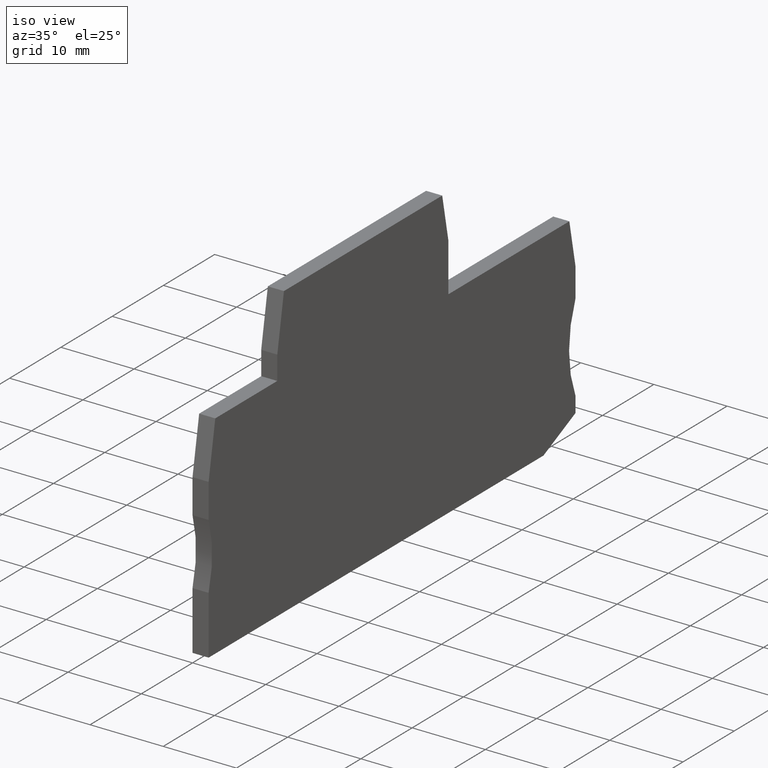
[diagram: clean part render]
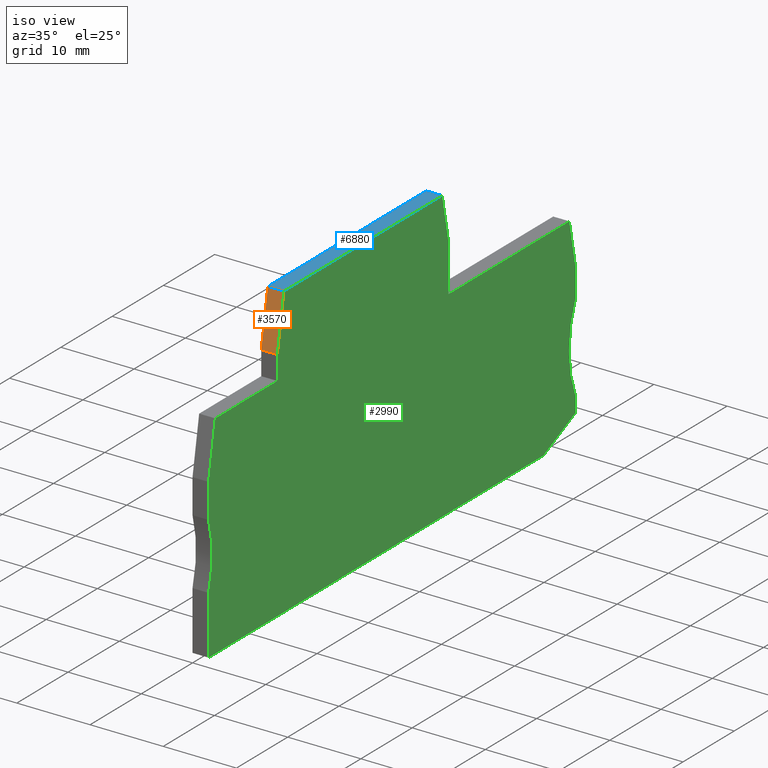
[diagram: same view with three faces highlighted in distinct colors, each labeled with its STEP entity id]
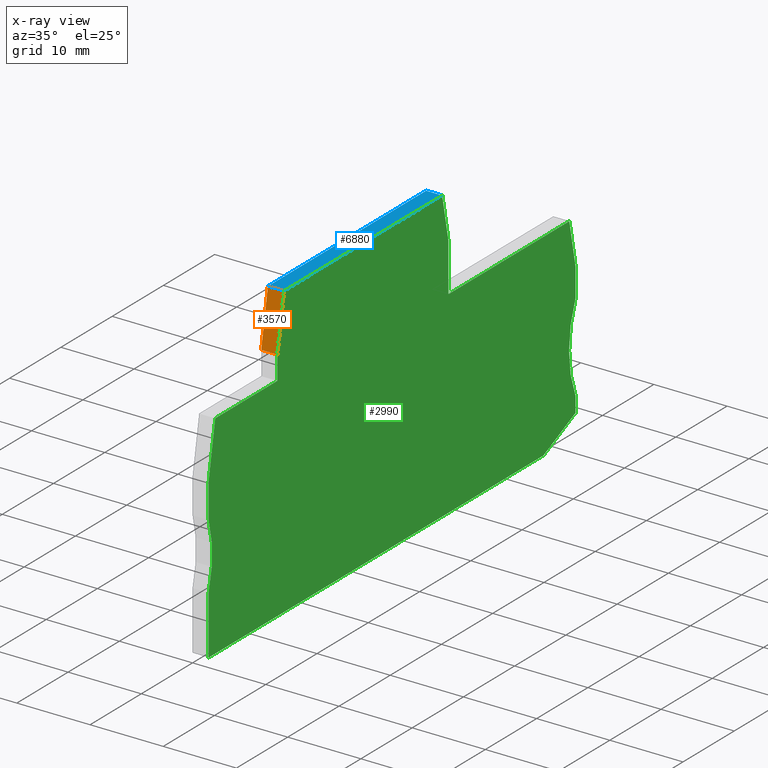
[diagram: x-ray of the same camera — body ghosted, the three highlighted faces saturated]
A machine part, iso view with three faces highlighted in distinct colors.
The next image is the same camera in x-ray (body ghosted, the three faces saturated) — at least one of them is partly hidden behind the body in this view.
Their STEP definitions:

[orange] entity #3570 — the highlighted planar face has unit normal (-0, -0.9848, 0.1736).
#200=CARTESIAN_POINT('',(62.5533991621023,1.44999999999059,53.67));
#210=VERTEX_POINT('',#200);
#240=CARTESIAN_POINT('',(60.1918554360151,-11.94298,53.67));
#250=DIRECTION('',(0.17364817766693,0.984807753012208,0.));
#260=VECTOR('',#250,1.);
#270=LINE('',#240,#260);
#280=CARTESIAN_POINT('',(61.2573958538972,-5.89999999999742,53.67));
#290=VERTEX_POINT('',#280);
#300=EDGE_CURVE('',#290,#210,#270,.T.);
#2710=CARTESIAN_POINT('',(61.2573958538972,-5.89999999999742,55.87));
#2720=VERTEX_POINT('',#2710);
#2750=CARTESIAN_POINT('',(60.1918554360151,-11.94298,55.87));
#2760=DIRECTION('',(0.17364817766693,0.984807753012208,0.));
#2770=VECTOR('',#2760,1.);
#2780=LINE('',#2750,#2770);
#2790=CARTESIAN_POINT('',(62.5533991621023,1.44999999999059,55.87));
#2800=VERTEX_POINT('',#2790);
#2810=EDGE_CURVE('',#2720,#2800,#2780,.T.);
#3360=CARTESIAN_POINT('',(61.2649919773911,-5.85692024292695,53.67));
#3370=DIRECTION('',(-0.984807753012208,0.17364817766693,0.));
#3380=DIRECTION('',(-0.17364817766693,-0.984807753012208,0.));
#3390=AXIS2_PLACEMENT_3D('',#3360,#3370,#3380);
#3400=PLANE('',#3390);
#3410=ORIENTED_EDGE('',*,*,#300,.F.);
#3420=CARTESIAN_POINT('',(62.5533991621023,1.44999999999058,53.67));
#3430=DIRECTION('',(0.,0.,-1.));
#3440=VECTOR('',#3430,1.);
#3450=LINE('',#3420,#3440);
#3460=EDGE_CURVE('',#2800,#210,#3450,.T.);
#3470=ORIENTED_EDGE('',*,*,#3460,.T.);
#3480=ORIENTED_EDGE('',*,*,#2810,.T.);
#3490=CARTESIAN_POINT('',(61.2573958538972,-5.89999999999742,53.67));
#3500=DIRECTION('',(0.,0.,-1.));
#3510=VECTOR('',#3500,1.);
#3520=LINE('',#3490,#3510);
#3530=EDGE_CURVE('',#2720,#290,#3520,.T.);
#3540=ORIENTED_EDGE('',*,*,#3530,.F.);
#3550=EDGE_LOOP('',(#3540,#3480,#3470,#3410));
#3560=FACE_OUTER_BOUND('',#3550,.T.);
#3570=ADVANCED_FACE('',(#3560),#3400,.T.);

[blue] entity #6880 — the highlighted planar face has unit normal (-0, -0, 1).
#100=CARTESIAN_POINT('',(93.4323955311731,1.44999999999059,53.67));
#110=VERTEX_POINT('',#100);
#160=CARTESIAN_POINT('',(104.930098,1.44999999999058,53.67));
#170=DIRECTION('',(1.,0.,0.));
#180=VECTOR('',#170,1.);
#190=LINE('',#160,#180);
#200=CARTESIAN_POINT('',(62.5533991621023,1.44999999999059,53.67));
#210=VERTEX_POINT('',#200);
#220=EDGE_CURVE('',#210,#110,#190,.T.);
#2790=CARTESIAN_POINT('',(62.5533991621023,1.44999999999059,55.87));
#2800=VERTEX_POINT('',#2790);
#2830=CARTESIAN_POINT('',(104.930098,1.44999999999058,55.87));
#2840=DIRECTION('',(1.,0.,0.));
#2850=VECTOR('',#2840,1.);
#2860=LINE('',#2830,#2850);
#2870=CARTESIAN_POINT('',(93.4323955311731,1.4499999999906,55.87));
#2880=VERTEX_POINT('',#2870);
#2890=EDGE_CURVE('',#2800,#2880,#2860,.T.);
#3420=CARTESIAN_POINT('',(62.5533991621023,1.44999999999058,53.67));
#3430=DIRECTION('',(0.,0.,-1.));
#3440=VECTOR('',#3430,1.);
#3450=LINE('',#3420,#3440);
#3460=EDGE_CURVE('',#2800,#210,#3450,.T.);
#4540=CARTESIAN_POINT('',(93.4323955311731,1.44999999999058,53.67));
#4550=DIRECTION('',(0.,0.,-1.));
#4560=VECTOR('',#4550,1.);
#4570=LINE('',#4540,#4560);
#4580=EDGE_CURVE('',#2880,#110,#4570,.T.);
#6770=CARTESIAN_POINT('',(62.9729489776909,1.44999999999058,53.67));
#6780=DIRECTION('',(0.,1.,-0.));
#6790=DIRECTION('',(-1.,0.,0.));
#6800=AXIS2_PLACEMENT_3D('',#6770,#6780,#6790);
#6810=PLANE('',#6800);
#6820=ORIENTED_EDGE('',*,*,#4580,.T.);
#6830=ORIENTED_EDGE('',*,*,#2890,.T.);
#6840=ORIENTED_EDGE('',*,*,#3460,.F.);
#6850=ORIENTED_EDGE('',*,*,#220,.F.);
#6860=EDGE_LOOP('',(#6850,#6840,#6830,#6820));
#6870=FACE_OUTER_BOUND('',#6860,.T.);
#6880=ADVANCED_FACE('',(#6870),#6810,.T.);

[green] entity #2990 — the highlighted planar face has unit normal (-1, 0, -0).
#1540=CARTESIAN_POINT('',(117.284544833248,-37.6438478557534,55.87));
#1550=DIRECTION('',(0.,0.,-1.));
#1560=DIRECTION('',(-1.,0.,0.));
#1570=AXIS2_PLACEMENT_3D('',#1540,#1550,#1560);
#1580=PLANE('',#1570);
#1590=CARTESIAN_POINT('',(94.6323955311728,-11.94298,55.87));
#1600=DIRECTION('',(1.79500271114492E-28,-1.,0.));
#1610=VECTOR('',#1600,1.);
#1620=LINE('',#1590,#1610);
#1630=CARTESIAN_POINT('',(94.6323955311728,-4.55000000000587,55.87));
#1640=VERTEX_POINT('',#1630);
#1650=CARTESIAN_POINT('',(94.6323955311728,-11.2000000000031,55.87));
#1660=VERTEX_POINT('',#1650);
#1670=EDGE_CURVE('',#1640,#1660,#1620,.T.);
#1680=ORIENTED_EDGE('',*,*,#1670,.F.);
#1690=CARTESIAN_POINT('',(104.930098,-11.2000000000031,55.87));
#1700=DIRECTION('',(1.,0.,0.));
#1710=VECTOR('',#1700,1.);
#1720=LINE('',#1690,#1710);
#1730=CARTESIAN_POINT('',(118.232395853898,-11.2000000000031,55.87));
#1740=VERTEX_POINT('',#1730);
#1750=EDGE_CURVE('',#1660,#1740,#1720,.T.);
#1760=ORIENTED_EDGE('',*,*,#1750,.F.);
#1770=CARTESIAN_POINT('',(118.380991853897,-11.94298,55.87));
#1780=DIRECTION('',(0.196116135138252,-0.980580675690907,0.));
#1790=VECTOR('',#1780,1.);
#1800=LINE('',#1770,#1790);
#1810=CARTESIAN_POINT('',(119.432395853897,-17.1999999999988,55.87));
#1820=VERTEX_POINT('',#1810);
#1830=EDGE_CURVE('',#1740,#1820,#1800,.T.);
#1840=ORIENTED_EDGE('',*,*,#1830,.F.);
#1850=CARTESIAN_POINT('',(119.432395853897,-11.94298,55.87));
#1860=DIRECTION('',(1.79500271114492E-28,-1.,0.));
#1870=VECTOR('',#1860,1.);
#1880=LINE('',#1850,#1870);
#1890=CARTESIAN_POINT('',(119.432395853897,-21.1999999680051,55.87));
#1900=VERTEX_POINT('',#1890);
#1910=EDGE_CURVE('',#1820,#1900,#1880,.T.);
#1920=ORIENTED_EDGE('',*,*,#1910,.F.);
#1930=CARTESIAN_POINT('',(133.1801229248,-27.2000000000027,55.87));
#1940=DIRECTION('',(0.,0.,1.));
#1950=DIRECTION('',(1.,0.,0.));
#1960=AXIS2_PLACEMENT_3D('',#1930,#1940,#1950);
#1970=CIRCLE('',#1960,15.);
#1980=CARTESIAN_POINT('',(119.432395853897,-33.2000000320001,55.87));
#1990=VERTEX_POINT('',#1980);
#2000=EDGE_CURVE('',#1900,#1990,#1970,.T.);
#2010=ORIENTED_EDGE('',*,*,#2000,.F.);
#2020=CARTESIAN_POINT('',(119.432395853897,-11.94298,55.87));
#2030=DIRECTION('',(1.79500271114492E-28,-1.,0.));
#2040=VECTOR('',#2030,1.);
#2050=LINE('',#2020,#2040);
#2060=CARTESIAN_POINT('',(119.432395853897,-35.3394702226237,55.87));
#2070=VERTEX_POINT('',#2060);
#2080=EDGE_CURVE('',#1990,#2070,#2050,.T.);
#2090=ORIENTED_EDGE('',*,*,#2080,.F.);
#2100=CARTESIAN_POINT('',(104.930098,-41.97947746349,55.87));
#2110=DIRECTION('',(-0.909228114586486,-0.41629825323379,0.));
#2120=VECTOR('',#2110,1.);
#2130=LINE('',#2100,#2120);
#2140=CARTESIAN_POINT('',(113.184773924186,-38.2000000000016,55.87));
#2150=VERTEX_POINT('',#2140);
#2160=EDGE_CURVE('',#2070,#2150,#2130,.T.);
#2170=ORIENTED_EDGE('',*,*,#2160,.F.);
#2180=CARTESIAN_POINT('',(104.930098,-38.2000000000016,55.87));
#2190=DIRECTION('',(-1.,0.,0.));
#2200=VECTOR('',#2190,1.);
#2210=LINE('',#2180,#2200);
#2220=CARTESIAN_POINT('',(47.8573958538972,-38.2000000000016,55.87));
#2230=VERTEX_POINT('',#2220);
#2240=EDGE_CURVE('',#2150,#2230,#2210,.T.);
#2250=ORIENTED_EDGE('',*,*,#2240,.F.);
#2260=CARTESIAN_POINT('',(47.8573958538972,-11.94298,55.87));
#2270=DIRECTION('',(4.65275954243089E-17,1.,0.));
#2280=VECTOR('',#2270,1.);
#2290=LINE('',#2260,#2280);
#2300=CARTESIAN_POINT('',(47.8573958538972,-30.2000000000048,55.87));
#2310=VERTEX_POINT('',#2300);
#2320=EDGE_CURVE('',#2230,#2310,#2290,.T.);
#2330=ORIENTED_EDGE('',*,*,#2320,.F.);
#2340=CARTESIAN_POINT('',(33.5483078326437,-25.7000000000027,55.87));
#2350=DIRECTION('',(0.,0.,-1.));
#2360=DIRECTION('',(-1.,0.,0.));
#2370=AXIS2_PLACEMENT_3D('',#2340,#2350,#2360);
#2380=CIRCLE('',#2370,15.);
#2390=CARTESIAN_POINT('',(47.8573958538972,-21.2000000000006,55.87));
#2400=VERTEX_POINT('',#2390);
#2410=EDGE_CURVE('',#2400,#2310,#2380,.T.);
#2420=ORIENTED_EDGE('',*,*,#2410,.T.);
#2430=CARTESIAN_POINT('',(47.8573958538972,-11.94298,55.87));
#2440=DIRECTION('',(0.,1.,0.));
#2450=VECTOR('',#2440,1.);
#2460=LINE('',#2430,#2450);
#2470=CARTESIAN_POINT('',(47.8573958538972,-16.4999982489833,55.87));
#2480=VERTEX_POINT('',#2470);
#2490=EDGE_CURVE('',#2400,#2480,#2460,.T.);
#2500=ORIENTED_EDGE('',*,*,#2490,.F.);
#2510=CARTESIAN_POINT('',(48.6609211227738,-11.94298,55.87));
#2520=DIRECTION('',(0.173648177666926,0.984807753012209,0.));
#2530=VECTOR('',#2520,1.);
#2540=LINE('',#2510,#2530);
#2550=CARTESIAN_POINT('',(49.1533988533523,-9.15000000000308,55.87));
#2560=VERTEX_POINT('',#2550);
#2570=EDGE_CURVE('',#2480,#2560,#2540,.T.);
#2580=ORIENTED_EDGE('',*,*,#2570,.F.);
#2590=CARTESIAN_POINT('',(104.930098,-9.15000000003588,55.87));
#2600=DIRECTION('',(1.,-5.88205564955502E-13,0.));
#2610=VECTOR('',#2600,1.);
#2620=LINE('',#2590,#2610);
#2630=CARTESIAN_POINT('',(61.2573958538972,-9.15000000001019,55.87));
#2640=VERTEX_POINT('',#2630);
#2650=EDGE_CURVE('',#2560,#2640,#2620,.T.);
#2660=ORIENTED_EDGE('',*,*,#2650,.F.);
#2670=CARTESIAN_POINT('',(61.2573958538972,-11.94298,55.87));
#2680=DIRECTION('',(0.,1.,0.));
#2690=VECTOR('',#2680,1.);
#2700=LINE('',#2670,#2690);
#2710=CARTESIAN_POINT('',(61.2573958538972,-5.89999999999742,55.87));
#2720=VERTEX_POINT('',#2710);
#2730=EDGE_CURVE('',#2640,#2720,#2700,.T.);
#2740=ORIENTED_EDGE('',*,*,#2730,.F.);
#2750=CARTESIAN_POINT('',(60.1918554360151,-11.94298,55.87));
#2760=DIRECTION('',(0.17364817766693,0.984807753012208,0.));
#2770=VECTOR('',#2760,1.);
#2780=LINE('',#2750,#2770);
#2790=CARTESIAN_POINT('',(62.5533991621023,1.44999999999059,55.87));
#2800=VERTEX_POINT('',#2790);
#2810=EDGE_CURVE('',#2720,#2800,#2780,.T.);
#2820=ORIENTED_EDGE('',*,*,#2810,.F.);
#2830=CARTESIAN_POINT('',(104.930098,1.44999999999058,55.87));
#2840=DIRECTION('',(1.,0.,0.));
#2850=VECTOR('',#2840,1.);
#2860=LINE('',#2830,#2850);
#2870=CARTESIAN_POINT('',(93.4323955311731,1.4499999999906,55.87));
#2880=VERTEX_POINT('',#2870);
#2890=EDGE_CURVE('',#2800,#2880,#2860,.T.);
#2900=ORIENTED_EDGE('',*,*,#2890,.F.);
#2910=CARTESIAN_POINT('',(96.1109915311721,-11.94298,55.87));
#2920=DIRECTION('',(0.196116135138246,-0.980580675690908,0.));
#2930=VECTOR('',#2920,1.);
#2940=LINE('',#2910,#2930);
#2950=EDGE_CURVE('',#2880,#1640,#2940,.T.);
#2960=ORIENTED_EDGE('',*,*,#2950,.F.);
#2970=EDGE_LOOP('',(#2960,#2900,#2820,#2740,#2660,#2580,#2500,#2420,
#2330,#2250,#2170,#2090,#2010,#1920,#1840,#1760,#1680));
#2980=FACE_OUTER_BOUND('',#2970,.T.);
#2990=ADVANCED_FACE('',(#2980),#1580,.F.);